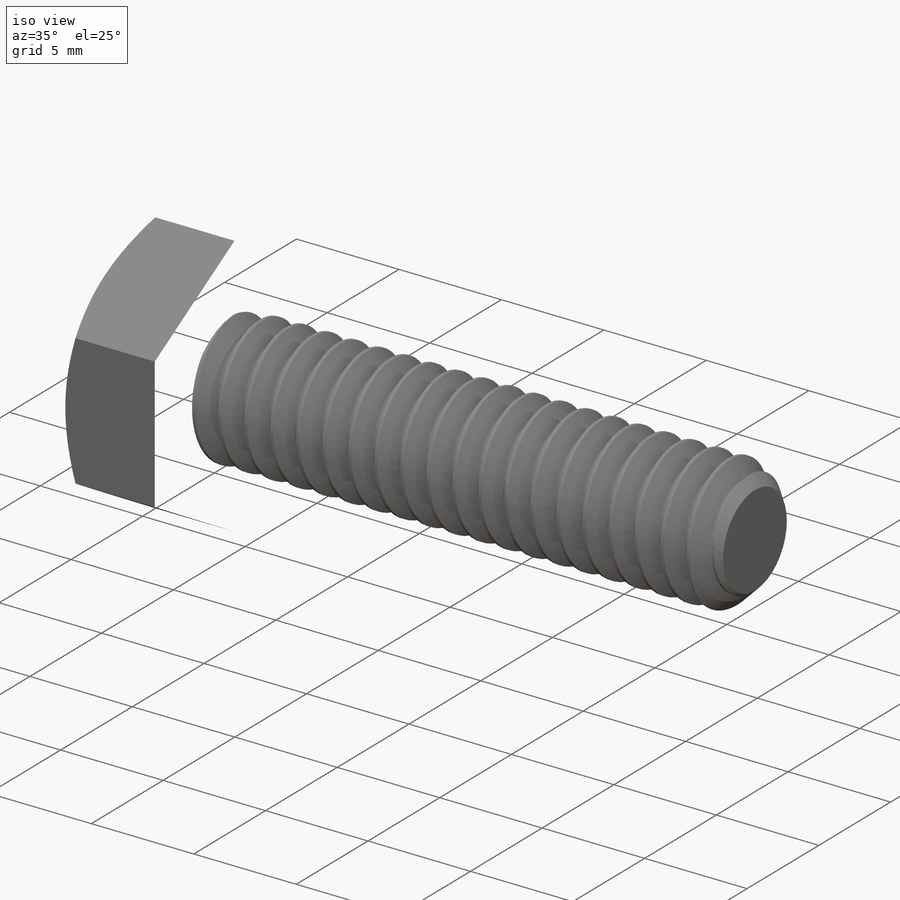
[diagram: iso view]
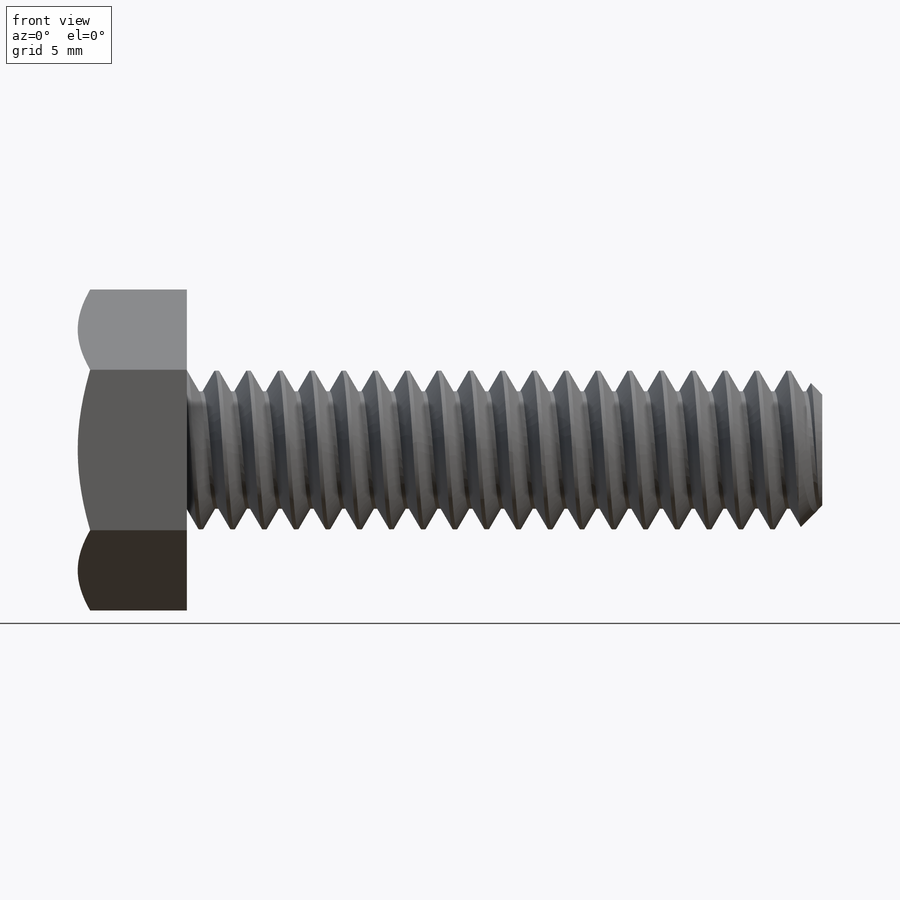
[diagram: front view]
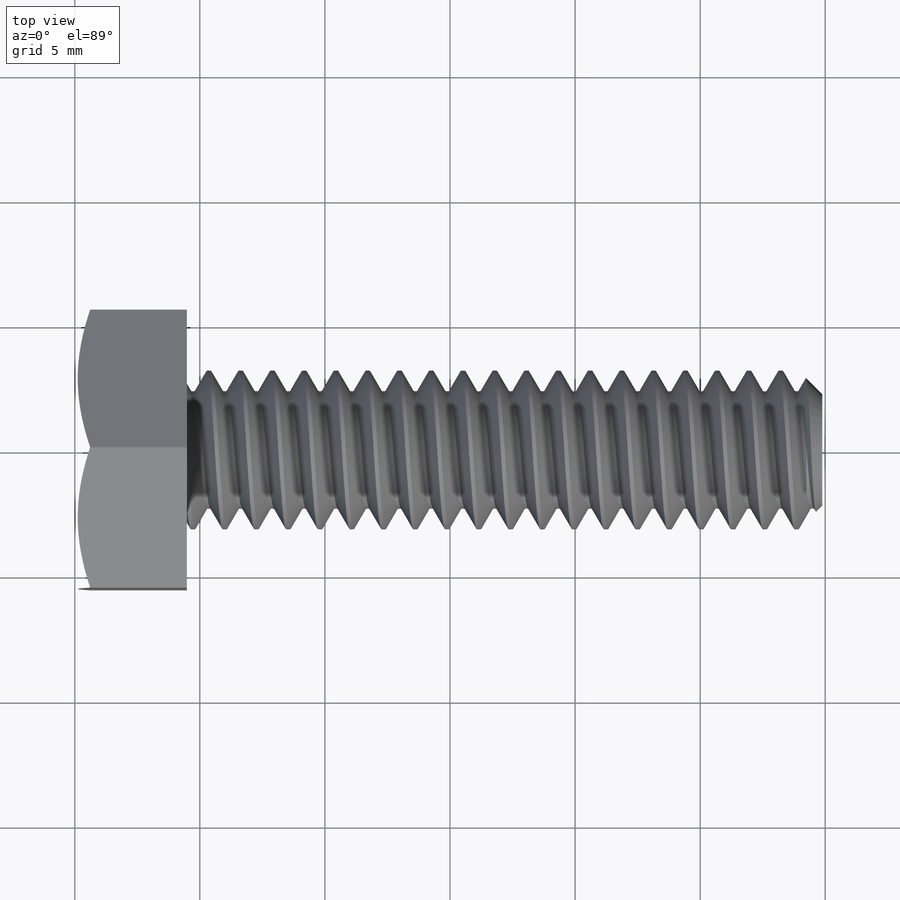
[diagram: top view]
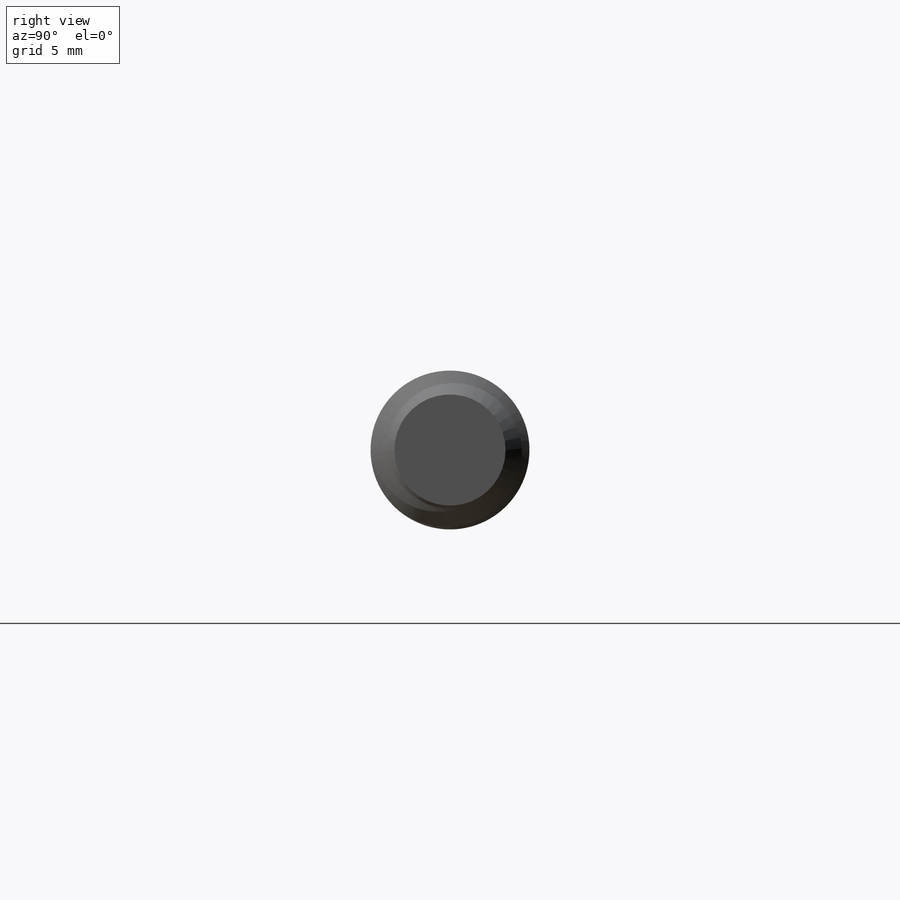
[diagram: right view]
SOLIDWORKS PART (.sldprt)
format: sldprt  version: not decoded by parser v0  size: 943,104 bytes
history: native  units: mm
features: sketch x8, extrude x2, material x1, plane x1, helix x1, chamfer x1, sweep x1, revolve x1, cut_extrude x1 (+15 scaffold rows collapsed)
feature tree (32):
  scaffold x15  (default folders/planes/origin — collapsed)
  material  "Material <not specified>"
  sketch  "Sketch1"  dims[Screw Dia=6.35mm Hex=11.1125mm Head Ht=~4.365625mm Screw Lenght=25.4mm D1=4.445mm]
  plane  "Plane2"
  sketch  "Sketch5"  dims[D1=15.875mm]
  extrude  "Boss-Extrude3"  [1 undecoded]
  sketch  "Sketch9"  dims[D1=0.0mm]
  helix  "Helix/Spiral1"  Pitch=26.67mm
  chamfer  "Chamfer1"  Distance=0.9525mm Angle=45deg
  sketch  "Sketch10"  dims[c1.D1=~2.023846mm c2.D1=60.0deg c2.D2=~0.15875mm c2.D3=0.635mm]
  sweep  "Cut-Sweep1"
  sketch  "Sketch11"  dims[c1.D1=~36.480947mm c2.D1=45.0deg c2.MIn Thread=31.75mm]
  revolve  "Revolve1"  Angle=360deg
  sketch  "Sketch6"
  extrude  "Boss-Extrude4"  [1 undecoded]
  sketch  "Sketch7"
  sketch  "Sketch8"
  cut_extrude  "Cut-Extrude3"  [1 undecoded]
decode coverage: 8 of 15 modeling features carry decoded parameters
note: ~ marks probable driven/reference dimensions
note: 3 parameter values undecoded
summary: no parameter record found for 3 features
note: suppression state not decoded; provenance and decode notes live in map.json
